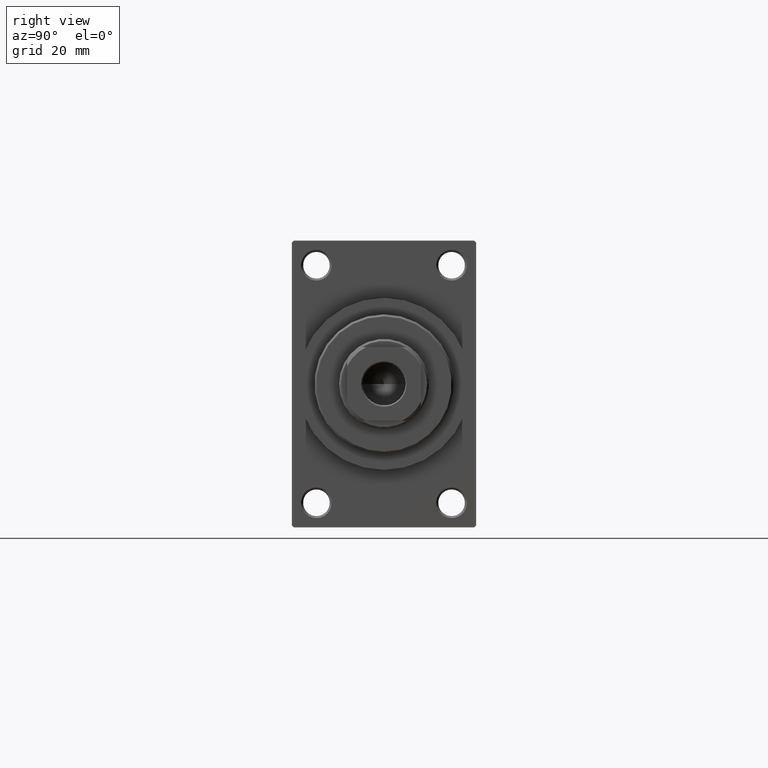
[diagram: clean part render]
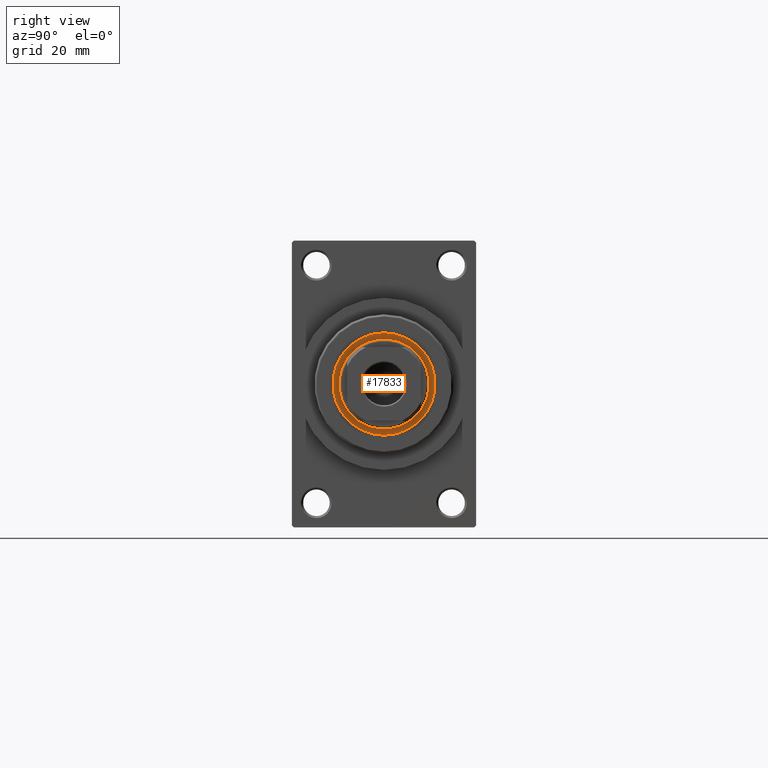
[diagram: same view with one face highlighted and labeled with its STEP entity id]
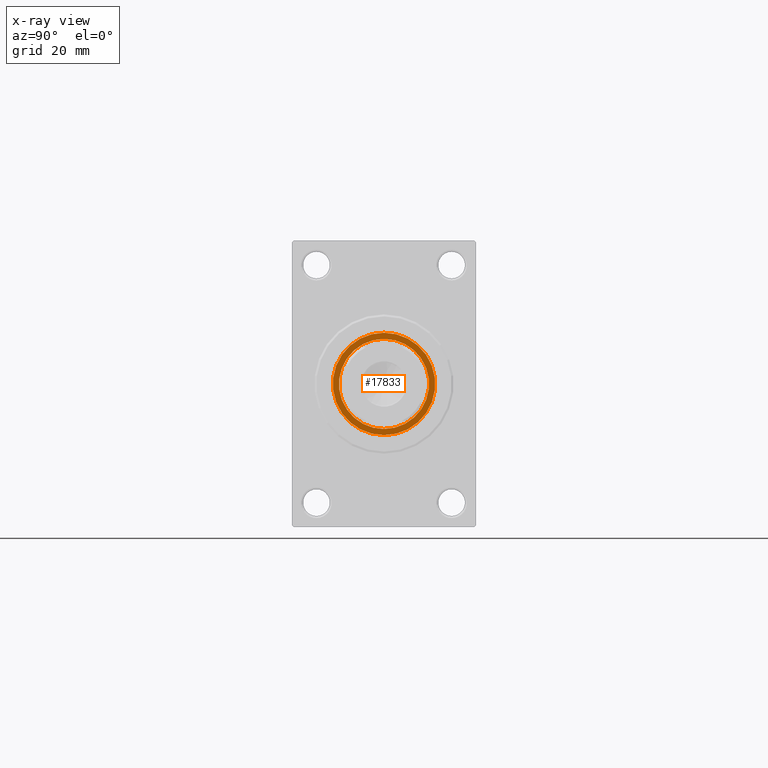
[diagram: x-ray of the same camera — body ghosted, the highlighted face saturated]
A machine part, right view. The second image highlights one B-rep face of the part: STEP entity #17833.
The next image is the same camera in x-ray: the body ghosted, the highlighted face saturated — about 0% of this face is hidden behind the body in this view.
In plain terms, the highlighted planar face has unit normal (1, -0, -0).
Its self-contained STEP definition (entity closure, byte-faithful):
#114 = FACE_OUTER_BOUND ( 'NONE', #31722, .T. ) ;
#715 = ORIENTED_EDGE ( 'NONE', *, *, #34568, .T. ) ;
#2531 = EDGE_CURVE ( 'NONE', #21324, #6090, #26565, .T. ) ;
#4991 = DIRECTION ( 'NONE',  ( -0.000000000000000000, -0.000000000000000000, -1.000000000000000000 ) ) ;
#5216 = CARTESIAN_POINT ( 'NONE',  ( 0.000000000000000000, 0.000000000000000000, 54.76000000000000512 ) ) ;
#6090 = VERTEX_POINT ( 'NONE', #28246 ) ;
#6150 = DIRECTION ( 'NONE',  ( 0.000000000000000000, 0.000000000000000000, 1.000000000000000000 ) ) ;
#6524 = EDGE_LOOP ( 'NONE', ( #41329, #45364 ) ) ;
#9243 = VERTEX_POINT ( 'NONE', #37929 ) ;
#9727 = DIRECTION ( 'NONE',  ( 1.000000000000000000, 0.000000000000000000, 0.000000000000000000 ) ) ;
#11564 = CARTESIAN_POINT ( 'NONE',  ( -11.00000000000000000, 1.347111479062088405E-15, 54.76000000000000512 ) ) ;
#12677 = CARTESIAN_POINT ( 'NONE',  ( 0.000000000000000000, 0.000000000000000000, 54.76000000000000512 ) ) ;
#14832 = AXIS2_PLACEMENT_3D ( 'NONE', #12677, #27240, #31032 ) ;
#15218 = EDGE_CURVE ( 'NONE', #6090, #21324, #34249, .T. ) ;
#15899 = AXIS2_PLACEMENT_3D ( 'NONE', #28194, #28643, #42713 ) ;
#16899 = CARTESIAN_POINT ( 'NONE',  ( 0.000000000000000000, 0.000000000000000000, 54.76000000000000512 ) ) ;
#17833 = ADVANCED_FACE ( 'NONE', ( #114, #31431 ), #46834, .T. ) ;
#18623 = AXIS2_PLACEMENT_3D ( 'NONE', #5216, #27415, #9727 ) ;
#19335 = DIRECTION ( 'NONE',  ( 1.000000000000000000, 0.000000000000000000, 0.000000000000000000 ) ) ;
#19970 = VERTEX_POINT ( 'NONE', #40025 ) ;
#21324 = VERTEX_POINT ( 'NONE', #11564 ) ;
#26565 = CIRCLE ( 'NONE', #15899, 11.00000000000000000 ) ;
#27240 = DIRECTION ( 'NONE',  ( 0.000000000000000000, 0.000000000000000000, 1.000000000000000000 ) ) ;
#27415 = DIRECTION ( 'NONE',  ( 0.000000000000000000, 0.000000000000000000, 1.000000000000000000 ) ) ;
#28194 = CARTESIAN_POINT ( 'NONE',  ( 0.000000000000000000, 0.000000000000000000, 54.76000000000000512 ) ) ;
#28246 = CARTESIAN_POINT ( 'NONE',  ( 11.00000000000000000, 0.000000000000000000, 54.76000000000000512 ) ) ;
#28643 = DIRECTION ( 'NONE',  ( -0.000000000000000000, -0.000000000000000000, -1.000000000000000000 ) ) ;
#31032 = DIRECTION ( 'NONE',  ( 1.000000000000000000, 0.000000000000000000, 0.000000000000000000 ) ) ;
#31142 = ORIENTED_EDGE ( 'NONE', *, *, #33656, .T. ) ;
#31431 = FACE_BOUND ( 'NONE', #6524, .T. ) ;
#31722 = EDGE_LOOP ( 'NONE', ( #715, #31142 ) ) ;
#33656 = EDGE_CURVE ( 'NONE', #9243, #19970, #41445, .T. ) ;
#34249 = CIRCLE ( 'NONE', #39570, 11.00000000000000000 ) ;
#34568 = EDGE_CURVE ( 'NONE', #19970, #9243, #39195, .T. ) ;
#37929 = CARTESIAN_POINT ( 'NONE',  ( -12.50000000000000000, 1.530808498934191521E-15, 54.76000000000000512 ) ) ;
#39195 = CIRCLE ( 'NONE', #14832, 12.50000000000000000 ) ;
#39570 = AXIS2_PLACEMENT_3D ( 'NONE', #45758, #4991, #19335 ) ;
#40025 = CARTESIAN_POINT ( 'NONE',  ( 12.50000000000000000, 0.000000000000000000, 54.76000000000000512 ) ) ;
#41329 = ORIENTED_EDGE ( 'NONE', *, *, #15218, .T. ) ;
#41445 = CIRCLE ( 'NONE', #18623, 12.50000000000000000 ) ;
#42713 = DIRECTION ( 'NONE',  ( 1.000000000000000000, 0.000000000000000000, 0.000000000000000000 ) ) ;
#44221 = AXIS2_PLACEMENT_3D ( 'NONE', #16899, #6150, #47068 ) ;
#45364 = ORIENTED_EDGE ( 'NONE', *, *, #2531, .T. ) ;
#45758 = CARTESIAN_POINT ( 'NONE',  ( 0.000000000000000000, 0.000000000000000000, 54.76000000000000512 ) ) ;
#46834 = PLANE ( 'NONE',  #44221 ) ;
#47068 = DIRECTION ( 'NONE',  ( 1.000000000000000000, 0.000000000000000000, -0.000000000000000000 ) ) ;